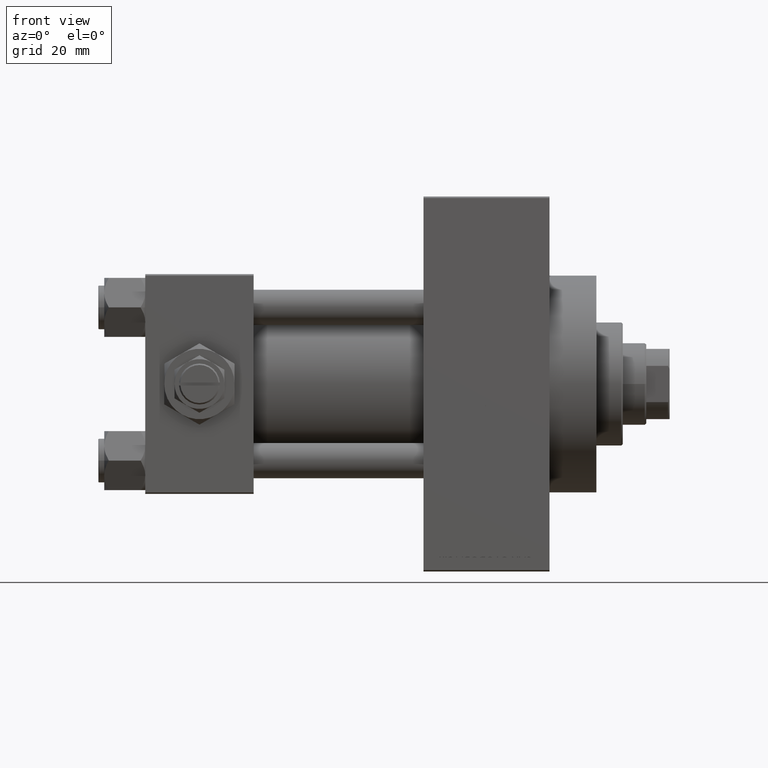
[diagram: clean part render]
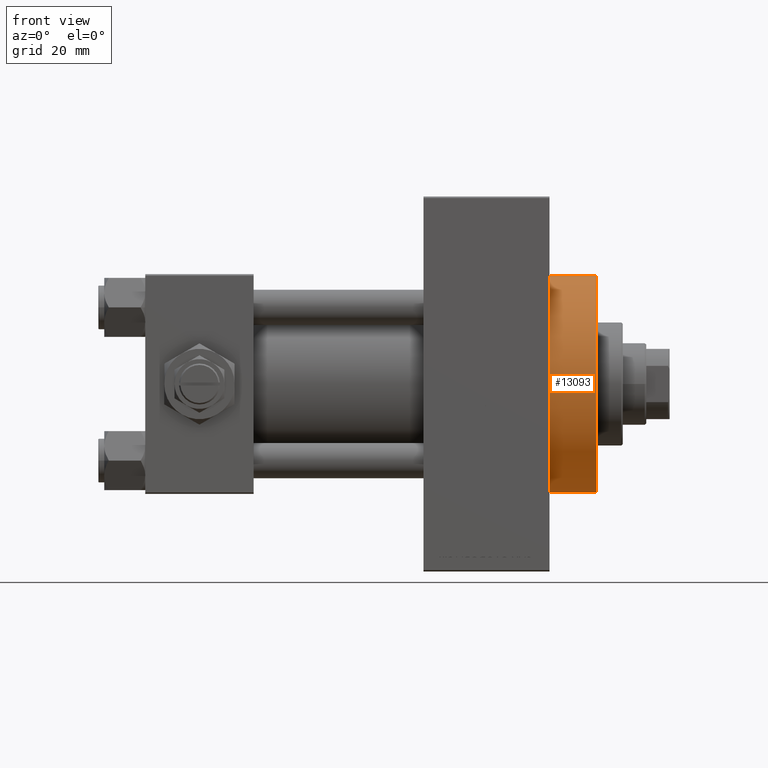
[diagram: same view with one face highlighted and labeled with its STEP entity id]
A machine part, front view. The second image highlights one B-rep face of the part: STEP entity #13093.
In plain terms, the highlighted cylindrical surface (partial cylindrical patch) has radius 37 mm, axis along (-1, -0, -0).
Its self-contained STEP definition (entity closure, byte-faithful):
#540 = CARTESIAN_POINT ( 'NONE',  ( 154.0000000000000284, 0.000000000000000000, 37.00000000000000000 ) ) ;
#3394 = CARTESIAN_POINT ( 'NONE',  ( 138.0000000000000000, 4.531193156845206793E-15, -37.00000000000000000 ) ) ;
#7854 = DIRECTION ( 'NONE',  ( 1.000000000000000000, 0.000000000000000000, 0.000000000000000000 ) ) ;
#8929 = VERTEX_POINT ( 'NONE', #3394 ) ;
#9093 = VECTOR ( 'NONE', #31882, 1000.000000000000000 ) ;
#9117 = CARTESIAN_POINT ( 'NONE',  ( 154.0000000000000284, 0.000000000000000000, 37.00000000000000000 ) ) ;
#9275 = VERTEX_POINT ( 'NONE', #32611 ) ;
#9581 = LINE ( 'NONE', #35369, #9093 ) ;
#10050 = CIRCLE ( 'NONE', #39344, 37.00000000000000000 ) ;
#11064 = CYLINDRICAL_SURFACE ( 'NONE', #39013, 37.00000000000000000 ) ;
#11609 = DIRECTION ( 'NONE',  ( 0.000000000000000000, 0.000000000000000000, -1.000000000000000000 ) ) ;
#11706 = EDGE_CURVE ( 'NONE', #18714, #36675, #38877, .T. ) ;
#12314 = CARTESIAN_POINT ( 'NONE',  ( 154.0000000000000284, 0.000000000000000000, 0.000000000000000000 ) ) ;
#13093 = ADVANCED_FACE ( 'NONE', ( #44531 ), #11064, .T. ) ;
#14178 = EDGE_LOOP ( 'NONE', ( #22207, #44479, #15043, #48935 ) ) ;
#15043 = ORIENTED_EDGE ( 'NONE', *, *, #11706, .T. ) ;
#15174 = VECTOR ( 'NONE', #16294, 1000.000000000000000 ) ;
#16294 = DIRECTION ( 'NONE',  ( -1.000000000000000000, -0.000000000000000000, -0.000000000000000000 ) ) ;
#17049 = CARTESIAN_POINT ( 'NONE',  ( 138.0000000000000000, 0.000000000000000000, 37.00000000000000000 ) ) ;
#18714 = VERTEX_POINT ( 'NONE', #540 ) ;
#21726 = CARTESIAN_POINT ( 'NONE',  ( 154.0000000000000284, 0.000000000000000000, 0.000000000000000000 ) ) ;
#22207 = ORIENTED_EDGE ( 'NONE', *, *, #22384, .F. ) ;
#22384 = EDGE_CURVE ( 'NONE', #9275, #8929, #9581, .T. ) ;
#22738 = DIRECTION ( 'NONE',  ( 0.000000000000000000, 0.000000000000000000, -1.000000000000000000 ) ) ;
#26107 = CIRCLE ( 'NONE', #40376, 37.00000000000000000 ) ;
#30307 = EDGE_CURVE ( 'NONE', #36675, #8929, #10050, .T. ) ;
#31882 = DIRECTION ( 'NONE',  ( -1.000000000000000000, -0.000000000000000000, -0.000000000000000000 ) ) ;
#32611 = CARTESIAN_POINT ( 'NONE',  ( 154.0000000000000284, 4.531193156845206793E-15, -37.00000000000000000 ) ) ;
#35369 = CARTESIAN_POINT ( 'NONE',  ( 154.0000000000000284, 4.531193156845206793E-15, -37.00000000000000000 ) ) ;
#36675 = VERTEX_POINT ( 'NONE', #17049 ) ;
#36964 = EDGE_CURVE ( 'NONE', #18714, #9275, #26107, .T. ) ;
#37894 = CARTESIAN_POINT ( 'NONE',  ( 138.0000000000000000, 0.000000000000000000, 0.000000000000000000 ) ) ;
#38877 = LINE ( 'NONE', #9117, #15174 ) ;
#39013 = AXIS2_PLACEMENT_3D ( 'NONE', #21726, #45017, #47984 ) ;
#39344 = AXIS2_PLACEMENT_3D ( 'NONE', #37894, #41612, #11609 ) ;
#40376 = AXIS2_PLACEMENT_3D ( 'NONE', #12314, #7854, #22738 ) ;
#41612 = DIRECTION ( 'NONE',  ( 1.000000000000000000, 0.000000000000000000, 0.000000000000000000 ) ) ;
#44479 = ORIENTED_EDGE ( 'NONE', *, *, #36964, .F. ) ;
#44531 = FACE_OUTER_BOUND ( 'NONE', #14178, .T. ) ;
#45017 = DIRECTION ( 'NONE',  ( -1.000000000000000000, -0.000000000000000000, -0.000000000000000000 ) ) ;
#47984 = DIRECTION ( 'NONE',  ( 0.000000000000000000, 0.000000000000000000, 1.000000000000000000 ) ) ;
#48935 = ORIENTED_EDGE ( 'NONE', *, *, #30307, .T. ) ;